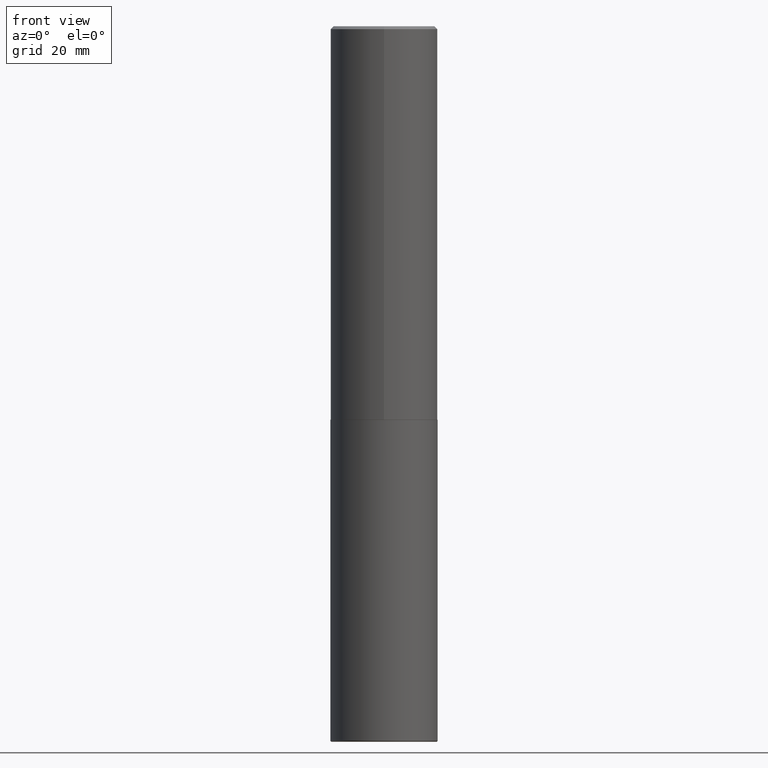
[diagram: clean part render]
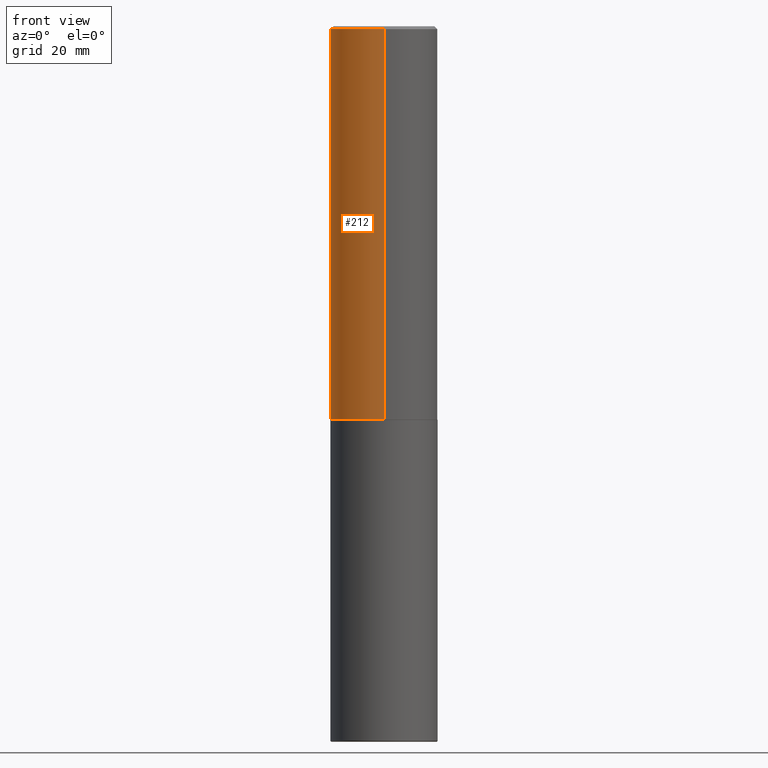
[diagram: same view with one face highlighted and labeled with its STEP entity id]
A machine part, front view. The second image highlights one B-rep face of the part: STEP entity #212.
In plain terms, the highlighted cylindrical surface (partial cylindrical patch) has radius 9.525 mm, axis along (-0, 0, 1).
Its self-contained STEP definition (entity closure, byte-faithful):
#11 = DIRECTION ( 'NONE',  ( -2.446040391741596606E-29, 3.490662795793665557E-15, 1.000000000000000000 ) ) ;
#55 = VERTEX_POINT ( 'NONE', #359 ) ;
#61 = DIRECTION ( 'NONE',  ( -2.446040391741596606E-29, 3.490662795793665557E-15, 1.000000000000000000 ) ) ;
#72 = CYLINDRICAL_SURFACE ( 'NONE', #177, 0.3750000000000002220 ) ;
#87 = DIRECTION ( 'NONE',  ( -6.982962677686265922E-15, -1.000000000000000000, 3.494488891895536035E-15 ) ) ;
#110 = CARTESIAN_POINT ( 'NONE',  ( 2.664535259100376880E-15, 0.3750000000000002220, -1.308998548422625521E-15 ) ) ;
#116 = VERTEX_POINT ( 'NONE', #290 ) ;
#135 = EDGE_CURVE ( 'NONE', #116, #174, #139, .T. ) ;
#139 = CIRCLE ( 'NONE', #401, 0.3750000000000003886 ) ;
#153 = AXIS2_PLACEMENT_3D ( 'NONE', #295, #407, #87 ) ;
#155 = EDGE_LOOP ( 'NONE', ( #164, #184, #352, #312 ) ) ;
#162 = LINE ( 'NONE', #286, #309 ) ;
#164 = ORIENTED_EDGE ( 'NONE', *, *, #283, .F. ) ;
#174 = VERTEX_POINT ( 'NONE', #197 ) ;
#177 = AXIS2_PLACEMENT_3D ( 'NONE', #252, #224, #354 ) ;
#184 = ORIENTED_EDGE ( 'NONE', *, *, #135, .T. ) ;
#192 = EDGE_CURVE ( 'NONE', #174, #341, #162, .T. ) ;
#197 = CARTESIAN_POINT ( 'NONE',  ( -2.618611004132284935E-15, -0.3750000000000099920, -2.748999999999999222 ) ) ;
#206 = VECTOR ( 'NONE', #61, 39.37007874015748143 ) ;
#208 = CARTESIAN_POINT ( 'NONE',  ( -2.572686749164323547E-15, -0.3750000000000001110, -0.01999999999999877570 ) ) ;
#212 = ADVANCED_FACE ( 'NONE', ( #348 ), #72, .T. ) ;
#224 = DIRECTION ( 'NONE',  ( -2.446040391741596606E-29, 3.490662795793665557E-15, 1.000000000000000000 ) ) ;
#226 = DIRECTION ( 'NONE',  ( -6.982962677686265922E-15, -1.000000000000000000, 2.913971193241877611E-15 ) ) ;
#252 = CARTESIAN_POINT ( 'NONE',  ( 0.000000000000000000, 0.000000000000000000, 0.000000000000000000 ) ) ;
#258 = CARTESIAN_POINT ( 'NONE',  ( 6.724165036897648492E-29, -9.595832025636787455E-15, -2.749000000000000110 ) ) ;
#283 = EDGE_CURVE ( 'NONE', #116, #55, #411, .T. ) ;
#286 = CARTESIAN_POINT ( 'NONE',  ( -2.618611004132351594E-15, -0.3750000000000002220, 1.308998548422625521E-15 ) ) ;
#288 = EDGE_CURVE ( 'NONE', #55, #341, #335, .T. ) ;
#290 = CARTESIAN_POINT ( 'NONE',  ( 2.664535259100411196E-15, 0.3749999999999907296, -2.749000000000000998 ) ) ;
#295 = CARTESIAN_POINT ( 'NONE',  ( 4.892080783483214581E-31, -6.981325591587361238E-17, -0.02000000000000008715 ) ) ;
#309 = VECTOR ( 'NONE', #358, 39.37007874015748143 ) ;
#312 = ORIENTED_EDGE ( 'NONE', *, *, #288, .F. ) ;
#335 = CIRCLE ( 'NONE', #153, 0.3750000000000000555 ) ;
#341 = VERTEX_POINT ( 'NONE', #208 ) ;
#348 = FACE_OUTER_BOUND ( 'NONE', #155, .T. ) ;
#352 = ORIENTED_EDGE ( 'NONE', *, *, #192, .T. ) ;
#354 = DIRECTION ( 'NONE',  ( -6.982962677686266711E-15, -1.000000000000000000, 3.490662795793665951E-15 ) ) ;
#358 = DIRECTION ( 'NONE',  ( -2.446040391741596606E-29, 3.490662795793665557E-15, 1.000000000000000000 ) ) ;
#359 = CARTESIAN_POINT ( 'NONE',  ( 2.618611004132350411E-15, 0.3749999999999999445, -0.02000000000000139513 ) ) ;
#401 = AXIS2_PLACEMENT_3D ( 'NONE', #258, #11, #226 ) ;
#407 = DIRECTION ( 'NONE',  ( -2.446040391741596606E-29, 3.490662795793665557E-15, 1.000000000000000000 ) ) ;
#411 = LINE ( 'NONE', #110, #206 ) ;